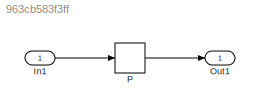
MODEL slx_963cb583f3ff
KIND model
CONFIG AbsTol = auto
CONFIG EnableMultiTasking = off
CONFIG FixedStep = auto
CONFIG MaxStep = auto
CONFIG MinStep = auto
CONFIG RelTol = 1e-3
CONFIG SampleTimeConstraint = Unconstrained
CONFIG Solver = FixedStepDiscrete
CONFIG SolverName = FixedStepDiscrete
CONFIG StartTime = 0.0
CONFIG StopTime = 10.0
BLOCK [Inport] In1
  IconDisplay = Port number
  OutDataTypeStr = single
  PortDimensions = 6
BLOCK [Outport] Out1
  IconDisplay = Port number
BLOCK [Lookup_n-D] P
  BreakpointsForDimension1 = [46.9093808332997;53.8680241842521]
  BreakpointsForDimension1DataTypeStr = int16
  BreakpointsForDimension2 = [36.5626730648583;40.4239640064168;60.2166536274935;89.6078183102279;90.8591106738562]
  BreakpointsForDimension2DataTypeStr = int16
  BreakpointsForDimension3 = [24.0400392764387;44.0060550707119;75.3318221142441]
  BreakpointsForDimension3DataTypeStr = int16
  BreakpointsForDimension4 = [10.3561887717753;17.3229730368176]
  BreakpointsForDimension4DataTypeStr = int16
  BreakpointsForDimension5 = [58.3732830161928;70.2354431668125;93.5065638704053]
  BreakpointsForDimension5DataTypeStr = int16
  BreakpointsForDimension6 = [8.82459557929928;13.5063855745149;38.2072079615724;39.3324044743457]
  BreakpointsForDimension6DataTypeStr = int16
  ExtrapMethod = Clip
  FractionDataTypeStr = single
  InternalRulePriority = Speed
  NumberOfTableDimensions = 6
  OutDataTypeStr = uint8
  Ports = [1, 1]
  RndMeth = Ceiling
  SaturateOnIntegerOverflow = on
  Table = reshape(repmat([4 5 6 7 8;16 19 20 21 22;10 18 23 24 25],6,8),[2,5,3,2,3, 4])
  TableDataTypeStr = double
  UseLastTableValue = on
  UseOneInputPortForAllInputData = on
LINE In1:1 -> P:1
LINE P:1 -> Out1:1
